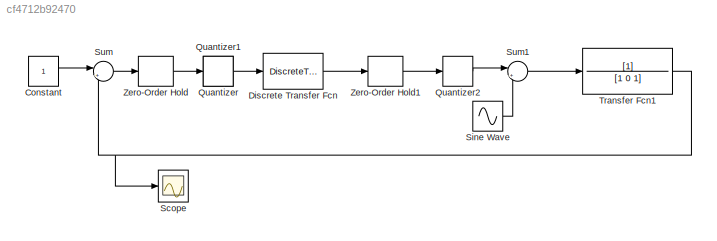
MODEL slx_cf4712b92470
KIND model
CONFIG AbsTol = auto
CONFIG EnableMultiTasking = off
CONFIG FixedStep = auto
CONFIG MaxStep = auto
CONFIG MinStep = auto
CONFIG RelTol = 1e-3
CONFIG SampleTimeConstraint = Unconstrained
CONFIG SolverName = VariableStepAuto
CONFIG StartTime = 0.0
CONFIG StopTime = 100
BLOCK [Constant] Constant
BLOCK [DiscreteTransferFcn] Discrete Transfer Fcn
  Denominator = [1 1.919 -3.165 0.9207 2.402 -3.077]
  InputPortMap = u0
  Numerator = [1242 -3131 3696 -2322 615.9]
  Ports = [1, 1]
BLOCK [Quantizer] Quantizer
BLOCK [Quantizer] Quantizer1
  QuantizationInterval = 0.001
BLOCK [Quantizer] Quantizer2
  QuantizationInterval = 0.001
BLOCK [Scope] Scope
  Floating = off
  NumInputPorts = 1
  Ports = [1]
  ScopeSpecificationString = Simulink.scopes.TimeScopeBlockCfg('CurrentConfiguration', extmgr.ConfigurationSet(extmgr.Configuration('Core','General UI',true),extmgr.Configuration('Core','Source UI',true),extmgr.Configuration('Sources','WiredSimulink',true),extmgr.Configuration('Visuals','Time Domain',true,'SerializedDisplays',{struct('MinYLimReal','-11.22267','MaxYLimReal','12.55731','YLabelReal','','MinYLimMag','0.00000','Ma...<+1368ch>
BLOCK [Sin] Sine Wave
  Frequency = 10
  Ports = [0, 1]
  SampleTime = 0
BLOCK [Sum] Sum
  Inputs = |+-
  Ports = [2, 1]
BLOCK [Sum] Sum1
  Inputs = |+-
  Ports = [2, 1]
BLOCK [TransferFcn] Transfer Fcn1
  Denominator = [1 0 1]
BLOCK [ZeroOrderHold] Zero-Order Hold
  SampleTime = 0.1
BLOCK [ZeroOrderHold] Zero-Order Hold1
  SampleTime = -1
LINE Constant:1 -> Sum:1
LINE Discrete Transfer Fcn:1 -> Zero-Order Hold1:1
LINE Quantizer2:1 -> Sum1:1
LINE Quantizer:1 -> Discrete Transfer Fcn:1
LINE Sine Wave:1 -> Sum1:2
LINE Sum1:1 -> Transfer Fcn1:1
LINE Sum:1 -> Zero-Order Hold:1
NET Transfer Fcn1:1 -> Scope:1, Sum:2
LINE Zero-Order Hold1:1 -> Quantizer2:1
LINE Zero-Order Hold:1 -> Quantizer:1
note: NET lines group one-source signal fan-out (src -> all destinations, sorted); 1:1 wires keep LINE
